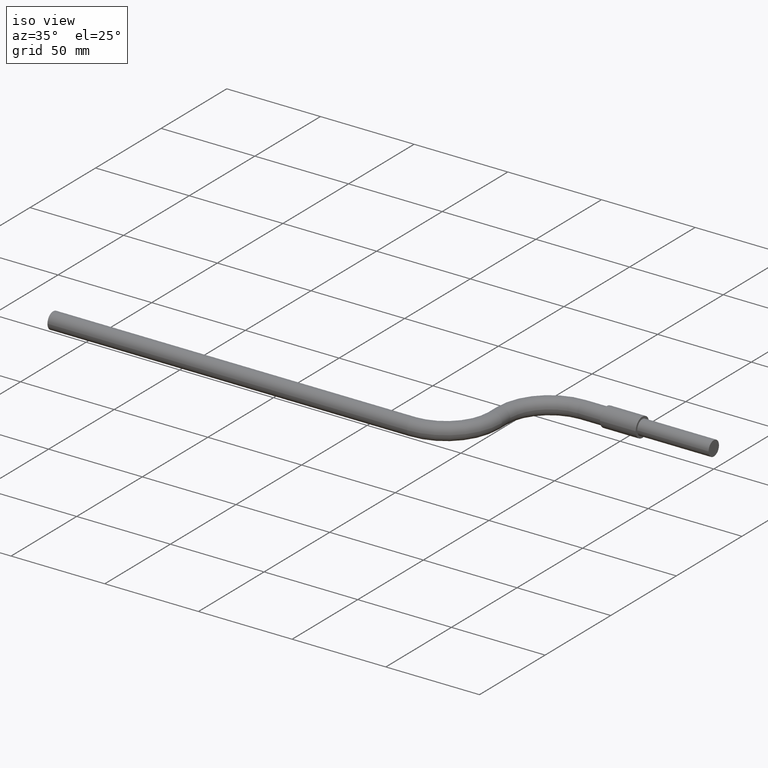
[diagram: clean part render]
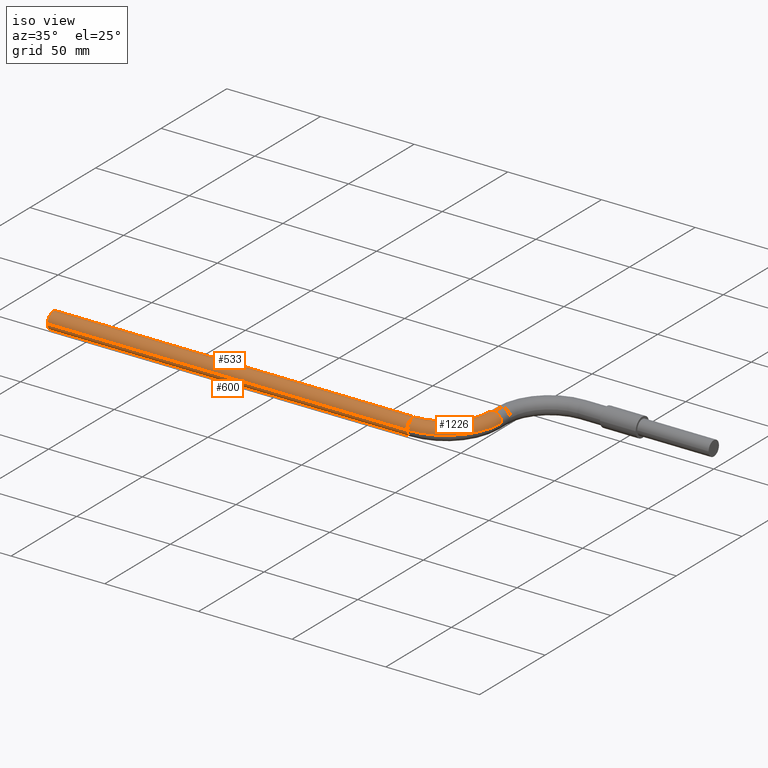
[diagram: same view with one multi-face feature highlighted, each face labeled with its STEP entity id]
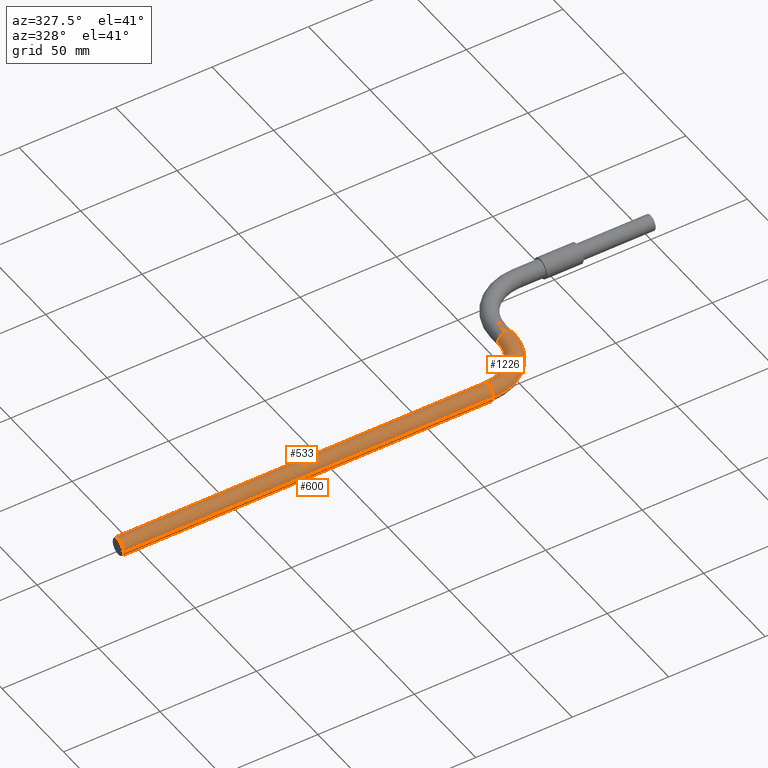
[diagram: same view with one multi-face feature highlighted, each face labeled with its STEP entity id]
A machine part, iso view. The highlighted faces form ONE feature: a constant-radius fillet chain: 3 tangent blend faces with common blend radius 4.3815 mm. The faces share edges in the B-rep.
A second angle (auxiliary view) of the same feature is appended — it is thin or edge-on in the first view.
Their STEP definitions:
[1] entity #600 (Cylinder):
#7 = CARTESIAN_POINT ( 'NONE',  ( -4.750000000000002665, -2.077499999999998348, 2.112515728529183919E-17 ) ) ;
#17 = CARTESIAN_POINT ( 'NONE',  ( -4.750000000000002665, -2.249999999999998224, 0.0000000000000000000 ) ) ;
#31 = VECTOR ( 'NONE', #1028, 39.37007874015748143 ) ;
#48 = VERTEX_POINT ( 'NONE', #338 ) ;
#68 = LINE ( 'NONE', #7, #448 ) ;
#103 = ORIENTED_EDGE ( 'NONE', *, *, #1040, .T. ) ;
#118 = CARTESIAN_POINT ( 'NONE',  ( -4.750000000000002665, -2.077499999999999236, 2.112515728529185460E-17 ) ) ;
#142 = ORIENTED_EDGE ( 'NONE', *, *, #350, .T. ) ;
#219 = CARTESIAN_POINT ( 'NONE',  ( -12.30566161966067362, -2.077499999999999680, 2.112515728529185460E-17 ) ) ;
#220 = DIRECTION ( 'NONE',  ( 0.0000000000000000000, -1.000000000000000000, 0.0000000000000000000 ) ) ;
#257 = DIRECTION ( 'NONE',  ( 0.0000000000000000000, -1.000000000000000000, 0.0000000000000000000 ) ) ;
#268 = EDGE_CURVE ( 'NONE', #1144, #996, #802, .T. ) ;
#274 = EDGE_CURVE ( 'NONE', #1029, #1144, #68, .T. ) ;
#326 = FACE_OUTER_BOUND ( 'NONE', #922, .T. ) ;
#338 = CARTESIAN_POINT ( 'NONE',  ( -4.750000000000002665, -2.422499999999998987, 0.0000000000000000000 ) ) ;
#350 = EDGE_CURVE ( 'NONE', #48, #996, #851, .T. ) ;
#366 = ORIENTED_EDGE ( 'NONE', *, *, #268, .F. ) ;
#403 = DIRECTION ( 'NONE',  ( 0.0000000000000000000, -1.000000000000000000, 0.0000000000000000000 ) ) ;
#423 = CYLINDRICAL_SURFACE ( 'NONE', #991, 0.1724999999999998757 ) ;
#448 = VECTOR ( 'NONE', #720, 39.37007874015748143 ) ;
#464 = AXIS2_PLACEMENT_3D ( 'NONE', #862, #1054, #220 ) ;
#481 = AXIS2_PLACEMENT_3D ( 'NONE', #580, #697, #403 ) ;
#580 = CARTESIAN_POINT ( 'NONE',  ( -4.750000000000002665, -2.249999999999999112, 0.0000000000000000000 ) ) ;
#600 = ADVANCED_FACE ( 'NONE', ( #326 ), #423, .T. ) ;
#676 = CIRCLE ( 'NONE', #481, 0.1724999999999998757 ) ;
#697 = DIRECTION ( 'NONE',  ( -1.000000000000000000, -1.836970198721030181E-16, 0.0000000000000000000 ) ) ;
#720 = DIRECTION ( 'NONE',  ( -1.000000000000000000, -1.446252164896157296E-16, 0.0000000000000000000 ) ) ;
#802 = CIRCLE ( 'NONE', #464, 0.1724999999999998757 ) ;
#851 = LINE ( 'NONE', #1217, #31 ) ;
#862 = CARTESIAN_POINT ( 'NONE',  ( -12.30566161966067362, -2.249999999999999556, 0.0000000000000000000 ) ) ;
#912 = CARTESIAN_POINT ( 'NONE',  ( -12.30566161966067362, -2.422499999999999432, 0.0000000000000000000 ) ) ;
#922 = EDGE_LOOP ( 'NONE', ( #1043, #103, #142, #366 ) ) ;
#991 = AXIS2_PLACEMENT_3D ( 'NONE', #17, #1213, #257 ) ;
#996 = VERTEX_POINT ( 'NONE', #912 ) ;
#1028 = DIRECTION ( 'NONE',  ( -1.000000000000000000, -1.446252164896157296E-16, 0.0000000000000000000 ) ) ;
#1029 = VERTEX_POINT ( 'NONE', #118 ) ;
#1040 = EDGE_CURVE ( 'NONE', #1029, #48, #676, .T. ) ;
#1043 = ORIENTED_EDGE ( 'NONE', *, *, #274, .F. ) ;
#1054 = DIRECTION ( 'NONE',  ( -1.000000000000000000, -1.836970198721030181E-16, 0.0000000000000000000 ) ) ;
#1144 = VERTEX_POINT ( 'NONE', #219 ) ;
#1213 = DIRECTION ( 'NONE',  ( -1.000000000000000000, -1.446252164896157296E-16, 0.0000000000000000000 ) ) ;
#1217 = CARTESIAN_POINT ( 'NONE',  ( -4.750000000000002665, -2.422499999999998099, 0.0000000000000000000 ) ) ;
[2] entity #533 (Cylinder):
#7 = CARTESIAN_POINT ( 'NONE',  ( -4.750000000000002665, -2.077499999999998348, 2.112515728529183919E-17 ) ) ;
#10 = CIRCLE ( 'NONE', #1023, 0.1724999999999998757 ) ;
#19 = CYLINDRICAL_SURFACE ( 'NONE', #536, 0.1724999999999998757 ) ;
#31 = VECTOR ( 'NONE', #1028, 39.37007874015748143 ) ;
#48 = VERTEX_POINT ( 'NONE', #338 ) ;
#68 = LINE ( 'NONE', #7, #448 ) ;
#74 = ORIENTED_EDGE ( 'NONE', *, *, #350, .F. ) ;
#118 = CARTESIAN_POINT ( 'NONE',  ( -4.750000000000002665, -2.077499999999999236, 2.112515728529185460E-17 ) ) ;
#129 = DIRECTION ( 'NONE',  ( 0.0000000000000000000, -1.000000000000000000, 0.0000000000000000000 ) ) ;
#161 = ORIENTED_EDGE ( 'NONE', *, *, #196, .F. ) ;
#196 = EDGE_CURVE ( 'NONE', #996, #1144, #10, .T. ) ;
#214 = CARTESIAN_POINT ( 'NONE',  ( -4.750000000000002665, -2.249999999999998224, 0.0000000000000000000 ) ) ;
#219 = CARTESIAN_POINT ( 'NONE',  ( -12.30566161966067362, -2.077499999999999680, 2.112515728529185460E-17 ) ) ;
#224 = AXIS2_PLACEMENT_3D ( 'NONE', #1133, #795, #798 ) ;
#274 = EDGE_CURVE ( 'NONE', #1029, #1144, #68, .T. ) ;
#338 = CARTESIAN_POINT ( 'NONE',  ( -4.750000000000002665, -2.422499999999998987, 0.0000000000000000000 ) ) ;
#350 = EDGE_CURVE ( 'NONE', #48, #996, #851, .T. ) ;
#434 = EDGE_CURVE ( 'NONE', #48, #1029, #527, .T. ) ;
#441 = EDGE_LOOP ( 'NONE', ( #453, #1237, #161, #74 ) ) ;
#448 = VECTOR ( 'NONE', #720, 39.37007874015748143 ) ;
#453 = ORIENTED_EDGE ( 'NONE', *, *, #434, .T. ) ;
#527 = CIRCLE ( 'NONE', #224, 0.1724999999999998757 ) ;
#533 = ADVANCED_FACE ( 'NONE', ( #931 ), #19, .T. ) ;
#536 = AXIS2_PLACEMENT_3D ( 'NONE', #214, #1223, #1210 ) ;
#720 = DIRECTION ( 'NONE',  ( -1.000000000000000000, -1.446252164896157296E-16, 0.0000000000000000000 ) ) ;
#795 = DIRECTION ( 'NONE',  ( -1.000000000000000000, -1.836970198721030181E-16, 0.0000000000000000000 ) ) ;
#798 = DIRECTION ( 'NONE',  ( 0.0000000000000000000, -1.000000000000000000, 0.0000000000000000000 ) ) ;
#851 = LINE ( 'NONE', #1217, #31 ) ;
#867 = DIRECTION ( 'NONE',  ( -1.000000000000000000, -1.836970198721030181E-16, 0.0000000000000000000 ) ) ;
#912 = CARTESIAN_POINT ( 'NONE',  ( -12.30566161966067362, -2.422499999999999432, 0.0000000000000000000 ) ) ;
#931 = FACE_OUTER_BOUND ( 'NONE', #441, .T. ) ;
#996 = VERTEX_POINT ( 'NONE', #912 ) ;
#1023 = AXIS2_PLACEMENT_3D ( 'NONE', #1154, #867, #129 ) ;
#1028 = DIRECTION ( 'NONE',  ( -1.000000000000000000, -1.446252164896157296E-16, 0.0000000000000000000 ) ) ;
#1029 = VERTEX_POINT ( 'NONE', #118 ) ;
#1133 = CARTESIAN_POINT ( 'NONE',  ( -4.750000000000002665, -2.249999999999999112, 0.0000000000000000000 ) ) ;
#1144 = VERTEX_POINT ( 'NONE', #219 ) ;
#1154 = CARTESIAN_POINT ( 'NONE',  ( -12.30566161966067362, -2.249999999999999556, 0.0000000000000000000 ) ) ;
#1210 = DIRECTION ( 'NONE',  ( 0.0000000000000000000, -1.000000000000000000, 0.0000000000000000000 ) ) ;
#1217 = CARTESIAN_POINT ( 'NONE',  ( -4.750000000000002665, -2.422499999999998099, 0.0000000000000000000 ) ) ;
#1223 = DIRECTION ( 'NONE',  ( -1.000000000000000000, -1.446252164896157296E-16, 0.0000000000000000000 ) ) ;
#1237 = ORIENTED_EDGE ( 'NONE', *, *, #274, .T. ) ;
[3] entity #1226 (Torus):
#48 = VERTEX_POINT ( 'NONE', #338 ) ;
#57 = AXIS2_PLACEMENT_3D ( 'NONE', #250, #856, #1167 ) ;
#63 = CARTESIAN_POINT ( 'NONE',  ( -3.750000000000001332, -1.250000000000000000, 0.0000000000000000000 ) ) ;
#90 = AXIS2_PLACEMENT_3D ( 'NONE', #768, #149, #455 ) ;
#98 = CIRCLE ( 'NONE', #1261, 1.172500000000000764 ) ;
#110 = CIRCLE ( 'NONE', #57, 0.1724999999999998757 ) ;
#118 = CARTESIAN_POINT ( 'NONE',  ( -4.750000000000002665, -2.077499999999999236, 2.112515728529185460E-17 ) ) ;
#139 = CIRCLE ( 'NONE', #332, 0.1724999999999998757 ) ;
#149 = DIRECTION ( 'NONE',  ( 0.0000000000000000000, 0.0000000000000000000, -1.000000000000000000 ) ) ;
#152 = EDGE_CURVE ( 'NONE', #1186, #296, #139, .T. ) ;
#186 = FACE_OUTER_BOUND ( 'NONE', #503, .T. ) ;
#188 = DIRECTION ( 'NONE',  ( 0.0000000000000000000, 0.0000000000000000000, -1.000000000000000000 ) ) ;
#224 = AXIS2_PLACEMENT_3D ( 'NONE', #1133, #795, #798 ) ;
#234 = CARTESIAN_POINT ( 'NONE',  ( -4.750000000000002665, -1.250000000000000000, 0.0000000000000000000 ) ) ;
#250 = CARTESIAN_POINT ( 'NONE',  ( -3.750000000000001332, -1.250000000000000000, 0.0000000000000000000 ) ) ;
#296 = VERTEX_POINT ( 'NONE', #737 ) ;
#332 = AXIS2_PLACEMENT_3D ( 'NONE', #63, #722, #1212 ) ;
#338 = CARTESIAN_POINT ( 'NONE',  ( -4.750000000000002665, -2.422499999999998987, 0.0000000000000000000 ) ) ;
#365 = VERTEX_POINT ( 'NONE', #1087 ) ;
#434 = EDGE_CURVE ( 'NONE', #48, #1029, #527, .T. ) ;
#455 = DIRECTION ( 'NONE',  ( -1.000000000000000000, 0.0000000000000000000, 0.0000000000000000000 ) ) ;
#462 = TOROIDAL_SURFACE ( 'NONE', #90, 1.000000000000000222, 0.1724999999999999589 ) ;
#503 = EDGE_LOOP ( 'NONE', ( #855, #1068, #1038, #1272, #1106 ) ) ;
#527 = CIRCLE ( 'NONE', #224, 0.1724999999999998757 ) ;
#584 = DIRECTION ( 'NONE',  ( -1.000000000000000000, 0.0000000000000000000, 0.0000000000000000000 ) ) ;
#585 = CARTESIAN_POINT ( 'NONE',  ( -4.750000000000002665, -1.250000000000000000, 2.112515728529183919E-17 ) ) ;
#689 = EDGE_CURVE ( 'NONE', #296, #1029, #987, .T. ) ;
#722 = DIRECTION ( 'NONE',  ( 7.044168388695577799E-16, -1.000000000000000000, 0.0000000000000000000 ) ) ;
#737 = CARTESIAN_POINT ( 'NONE',  ( -3.922500000000001208, -1.250000000000000000, 2.112515728529178680E-17 ) ) ;
#768 = CARTESIAN_POINT ( 'NONE',  ( -4.750000000000002665, -1.250000000000000000, 0.0000000000000000000 ) ) ;
#795 = DIRECTION ( 'NONE',  ( -1.000000000000000000, -1.836970198721030181E-16, 0.0000000000000000000 ) ) ;
#798 = DIRECTION ( 'NONE',  ( 0.0000000000000000000, -1.000000000000000000, 0.0000000000000000000 ) ) ;
#855 = ORIENTED_EDGE ( 'NONE', *, *, #1293, .F. ) ;
#856 = DIRECTION ( 'NONE',  ( 7.044168388695577799E-16, -1.000000000000000000, 0.0000000000000000000 ) ) ;
#987 = CIRCLE ( 'NONE', #1037, 0.8274999999999999023 ) ;
#1013 = CARTESIAN_POINT ( 'NONE',  ( -3.750000000000001332, -1.250000000000000000, 0.1724999999999999589 ) ) ;
#1029 = VERTEX_POINT ( 'NONE', #118 ) ;
#1037 = AXIS2_PLACEMENT_3D ( 'NONE', #585, #1202, #1114 ) ;
#1038 = ORIENTED_EDGE ( 'NONE', *, *, #152, .T. ) ;
#1061 = EDGE_CURVE ( 'NONE', #365, #1186, #110, .T. ) ;
#1068 = ORIENTED_EDGE ( 'NONE', *, *, #1061, .T. ) ;
#1087 = CARTESIAN_POINT ( 'NONE',  ( -3.577500000000001901, -1.250000000000000000, 0.0000000000000000000 ) ) ;
#1106 = ORIENTED_EDGE ( 'NONE', *, *, #434, .F. ) ;
#1114 = DIRECTION ( 'NONE',  ( -1.000000000000000000, 0.0000000000000000000, 0.0000000000000000000 ) ) ;
#1133 = CARTESIAN_POINT ( 'NONE',  ( -4.750000000000002665, -2.249999999999999112, 0.0000000000000000000 ) ) ;
#1167 = DIRECTION ( 'NONE',  ( 1.000000000000000000, 0.0000000000000000000, 0.0000000000000000000 ) ) ;
#1186 = VERTEX_POINT ( 'NONE', #1013 ) ;
#1202 = DIRECTION ( 'NONE',  ( 0.0000000000000000000, 0.0000000000000000000, -1.000000000000000000 ) ) ;
#1212 = DIRECTION ( 'NONE',  ( 1.000000000000000000, 0.0000000000000000000, 0.0000000000000000000 ) ) ;
#1226 = ADVANCED_FACE ( 'NONE', ( #186 ), #462, .T. ) ;
#1261 = AXIS2_PLACEMENT_3D ( 'NONE', #234, #188, #584 ) ;
#1272 = ORIENTED_EDGE ( 'NONE', *, *, #689, .T. ) ;
#1293 = EDGE_CURVE ( 'NONE', #365, #48, #98, .T. ) ;